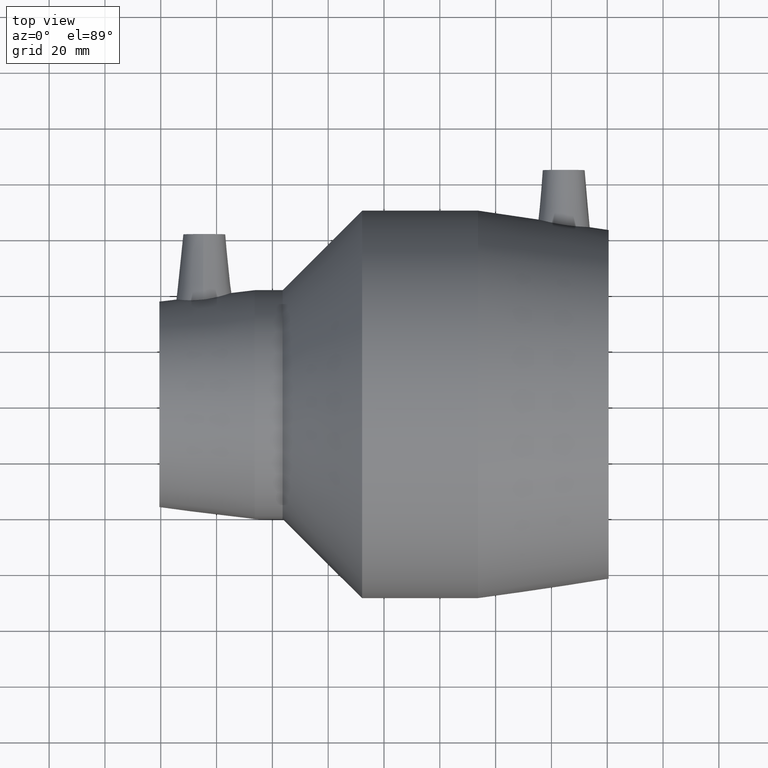
[diagram: clean part render]
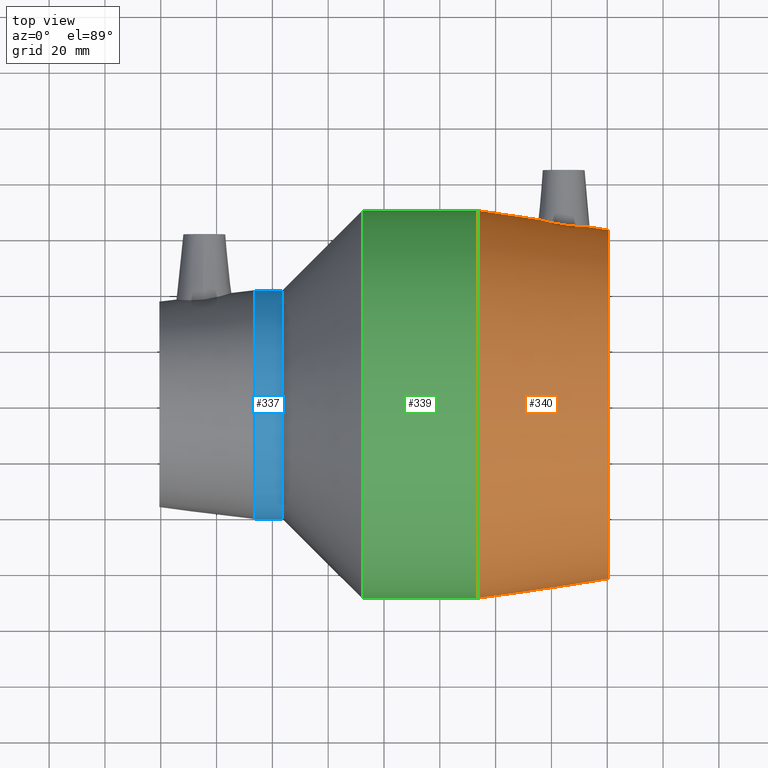
[diagram: same view with three faces highlighted in distinct colors, each labeled with its STEP entity id]
A machine part, top view with three faces highlighted in distinct colors.
Their STEP definitions:

[orange] entity #340 — the highlighted conical surface has half-angle 8.447 deg.
#15=B_SPLINE_CURVE_WITH_KNOTS('',3,(#561,#562,#563,#564,#565,#566,#567,
#568,#569,#570,#571,#572,#573,#574,#575,#576,#577,#578,#579,#580,#581,#582,
#583,#584,#585,#586,#587,#588,#589,#590,#591,#592,#593,#594),
 .UNSPECIFIED.,.T.,.F.,(4,2,2,2,2,2,2,2,2,2,2,2,2,2,2,2,4),(0.,0.342194426050319,
0.684388852100639,1.02698755669648,1.36958626129233,1.71218496588817,2.05478367048401,
2.39697809653433,2.73917252258465,3.09812011739086,3.45706771219707,3.80878257710364,
4.16049744201021,4.51221230691678,4.86392717182335,5.22287476662956,5.58182236143577),
 .UNSPECIFIED.);
#20=CONICAL_SURFACE('',#387,66.025,8.44693425280896);
#38=FACE_BOUND('',#127,.T.);
#39=FACE_BOUND('',#128,.T.);
#82=FACE_OUTER_BOUND('',#126,.T.);
#126=EDGE_LOOP('',(#279));
#127=EDGE_LOOP('',(#280));
#128=EDGE_LOOP('',(#281));
#173=CIRCLE('',#386,69.5);
#174=CIRCLE('',#388,62.55);
#195=VERTEX_POINT('',#560);
#204=VERTEX_POINT('',#652);
#205=VERTEX_POINT('',#655);
#226=EDGE_CURVE('',#195,#195,#15,.T.);
#235=EDGE_CURVE('',#204,#204,#173,.T.);
#236=EDGE_CURVE('',#205,#205,#174,.T.);
#279=ORIENTED_EDGE('',*,*,#236,.F.);
#280=ORIENTED_EDGE('',*,*,#226,.T.);
#281=ORIENTED_EDGE('',*,*,#235,.T.);
#340=ADVANCED_FACE('',(#82,#38,#39),#20,.T.);
#386=AXIS2_PLACEMENT_3D('',#653,#476,#477);
#387=AXIS2_PLACEMENT_3D('',#654,#478,#479);
#388=AXIS2_PLACEMENT_3D('',#656,#480,#481);
#476=DIRECTION('center_axis',(1.,1.83697019872103E-16,0.));
#477=DIRECTION('ref_axis',(0.,0.,-1.));
#478=DIRECTION('center_axis',(-1.,-1.83697019872103E-16,0.));
#479=DIRECTION('ref_axis',(-1.72213011695957E-16,1.,0.));
#480=DIRECTION('center_axis',(1.,1.83697019872103E-16,0.));
#481=DIRECTION('ref_axis',(0.,0.,-1.));
#560=CARTESIAN_POINT('',(64.7133875241579,64.2355130716021,-9.22384628677279));
#561=CARTESIAN_POINT('Ctrl Pts',(64.713387524158,64.2355130716022,-9.22384628677277));
#562=CARTESIAN_POINT('Ctrl Pts',(65.841662243913,64.0696606096731,-9.20003083731241));
#563=CARTESIAN_POINT('Ctrl Pts',(67.0462952775672,63.9258739646618,-8.95169967418688));
#564=CARTESIAN_POINT('Ctrl Pts',(69.2610254819318,63.7217551401885,-7.9898153892368));
#565=CARTESIAN_POINT('Ctrl Pts',(70.2709091327812,63.6596958638196,-7.27613793341632));
#566=CARTESIAN_POINT('Ctrl Pts',(71.86305273922,63.587949383017,-5.64200398716101));
#567=CARTESIAN_POINT('Ctrl Pts',(72.5520690287915,63.5731412812018,-4.61174135587356));
#568=CARTESIAN_POINT('Ctrl Pts',(73.4645818982948,63.5608419852022,-2.36172197837836));
#569=CARTESIAN_POINT('Ctrl Pts',(73.6881290045965,63.5615919533772,-1.14199568198614));
#570=CARTESIAN_POINT('Ctrl Pts',(73.6881290045965,63.5615919533772,1.14199568198614));
#571=CARTESIAN_POINT('Ctrl Pts',(73.4645818982948,63.5608419852022,2.36172197837836));
#572=CARTESIAN_POINT('Ctrl Pts',(72.5520690287915,63.5731412812018,4.61174135587356));
#573=CARTESIAN_POINT('Ctrl Pts',(71.86305273922,63.587949383017,5.64200398716101));
#574=CARTESIAN_POINT('Ctrl Pts',(70.2709091327812,63.6596958638196,7.27613793341632));
#575=CARTESIAN_POINT('Ctrl Pts',(69.2610254819318,63.7217551401885,7.9898153892368));
#576=CARTESIAN_POINT('Ctrl Pts',(67.0462952775672,63.9258739646618,8.95169967418688));
#577=CARTESIAN_POINT('Ctrl Pts',(65.841662243913,64.0696606096731,9.20003083731242));
#578=CARTESIAN_POINT('Ctrl Pts',(63.5298746843635,64.4094853451698,9.24882769398531));
#579=CARTESIAN_POINT('Ctrl Pts',(62.2706448307937,64.6310684417817,9.03115686184926));
#580=CARTESIAN_POINT('Ctrl Pts',(59.9561772114932,65.1008408796841,8.09903053485878));
#581=CARTESIAN_POINT('Ctrl Pts',(58.9004706303066,65.3471469285392,7.38479098993605));
#582=CARTESIAN_POINT('Ctrl Pts',(57.2482842157751,65.758365412772,5.73774893241237));
#583=CARTESIAN_POINT('Ctrl Pts',(56.5351565229056,65.951485004146,4.70114999102108));
#584=CARTESIAN_POINT('Ctrl Pts',(55.5859345009533,66.2156112870939,2.41862780352822));
#585=CARTESIAN_POINT('Ctrl Pts',(55.3501264015858,66.2848637074568,1.1723828830219));
#586=CARTESIAN_POINT('Ctrl Pts',(55.3501264015858,66.2848637074568,-1.1723828830219));
#587=CARTESIAN_POINT('Ctrl Pts',(55.5859345009533,66.2156112870939,-2.41862780352822));
#588=CARTESIAN_POINT('Ctrl Pts',(56.5351565229056,65.951485004146,-4.70114999102107));
#589=CARTESIAN_POINT('Ctrl Pts',(57.2482842157751,65.758365412772,-5.73774893241237));
#590=CARTESIAN_POINT('Ctrl Pts',(58.9004706303066,65.3471469285393,-7.38479098993605));
#591=CARTESIAN_POINT('Ctrl Pts',(59.9561772114932,65.1008408796841,-8.09903053485879));
#592=CARTESIAN_POINT('Ctrl Pts',(62.2706448307937,64.6310684417817,-9.03115686184926));
#593=CARTESIAN_POINT('Ctrl Pts',(63.5298746843635,64.4094853451698,-9.24882769398531));
#594=CARTESIAN_POINT('Ctrl Pts',(64.713387524158,64.2355130716022,-9.22384628677277));
#652=CARTESIAN_POINT('',(33.7,69.5,0.));
#653=CARTESIAN_POINT('Origin',(33.7,2.09781996693942E-14,0.));
#654=CARTESIAN_POINT('Origin',(57.1,2.52767099344014E-14,0.));
#655=CARTESIAN_POINT('',(80.5,62.55,0.));
#656=CARTESIAN_POINT('Origin',(80.5,2.95752201994086E-14,0.));

[blue] entity #337 — the highlighted cylindrical surface (bore or boss wall) has radius 41 mm, axis along (1, 0, 0).
#35=FACE_BOUND('',#121,.T.);
#60=CYLINDRICAL_SURFACE('',#380,41.);
#79=FACE_OUTER_BOUND('',#120,.T.);
#120=EDGE_LOOP('',(#273));
#121=EDGE_LOOP('',(#274));
#170=CIRCLE('',#381,41.);
#171=CIRCLE('',#382,41.);
#201=VERTEX_POINT('',#644);
#202=VERTEX_POINT('',#646);
#232=EDGE_CURVE('',#201,#201,#170,.T.);
#233=EDGE_CURVE('',#202,#202,#171,.T.);
#273=ORIENTED_EDGE('',*,*,#232,.F.);
#274=ORIENTED_EDGE('',*,*,#233,.T.);
#337=ADVANCED_FACE('',(#79,#35),#60,.T.);
#380=AXIS2_PLACEMENT_3D('',#643,#464,#465);
#381=AXIS2_PLACEMENT_3D('',#645,#466,#467);
#382=AXIS2_PLACEMENT_3D('',#647,#468,#469);
#464=DIRECTION('center_axis',(1.,1.83697019872103E-16,0.));
#465=DIRECTION('ref_axis',(-1.72213011695957E-16,1.,0.));
#466=DIRECTION('center_axis',(1.,1.83697019872103E-16,0.));
#467=DIRECTION('ref_axis',(0.,0.,-1.));
#468=DIRECTION('center_axis',(1.,1.83697019872103E-16,0.));
#469=DIRECTION('ref_axis',(0.,0.,-1.));
#643=CARTESIAN_POINT('Origin',(-41.3125,7.19862696623804E-15,0.));
#644=CARTESIAN_POINT('',(-36.325,41.,0.));
#645=CARTESIAN_POINT('Origin',(-36.325,8.11481585285015E-15,0.));
#646=CARTESIAN_POINT('',(-46.3,41.,0.));
#647=CARTESIAN_POINT('Origin',(-46.3,6.28243807962592E-15,0.));

[green] entity #339 — the highlighted cylindrical surface (bore or boss wall) has radius 69.5 mm, axis along (1, 0, 0).
#37=FACE_BOUND('',#125,.T.);
#61=CYLINDRICAL_SURFACE('',#385,69.5);
#81=FACE_OUTER_BOUND('',#124,.T.);
#124=EDGE_LOOP('',(#277));
#125=EDGE_LOOP('',(#278));
#172=CIRCLE('',#384,69.5);
#173=CIRCLE('',#386,69.5);
#203=VERTEX_POINT('',#649);
#204=VERTEX_POINT('',#652);
#234=EDGE_CURVE('',#203,#203,#172,.T.);
#235=EDGE_CURVE('',#204,#204,#173,.T.);
#277=ORIENTED_EDGE('',*,*,#235,.F.);
#278=ORIENTED_EDGE('',*,*,#234,.T.);
#339=ADVANCED_FACE('',(#81,#37),#61,.T.);
#384=AXIS2_PLACEMENT_3D('',#650,#472,#473);
#385=AXIS2_PLACEMENT_3D('',#651,#474,#475);
#386=AXIS2_PLACEMENT_3D('',#653,#476,#477);
#472=DIRECTION('center_axis',(1.,1.83697019872103E-16,0.));
#473=DIRECTION('ref_axis',(0.,0.,-1.));
#474=DIRECTION('center_axis',(1.,1.83697019872103E-16,0.));
#475=DIRECTION('ref_axis',(-1.72213011695957E-16,1.,0.));
#476=DIRECTION('center_axis',(1.,1.83697019872103E-16,0.));
#477=DIRECTION('ref_axis',(0.,0.,-1.));
#649=CARTESIAN_POINT('',(-7.82500000000002,69.5,0.));
#650=CARTESIAN_POINT('Origin',(-7.82500000000001,1.33501809192051E-14,0.));
#651=CARTESIAN_POINT('Origin',(12.9375,1.71641902942996E-14,0.));
#652=CARTESIAN_POINT('',(33.7,69.5,0.));
#653=CARTESIAN_POINT('Origin',(33.7,2.09781996693942E-14,0.));